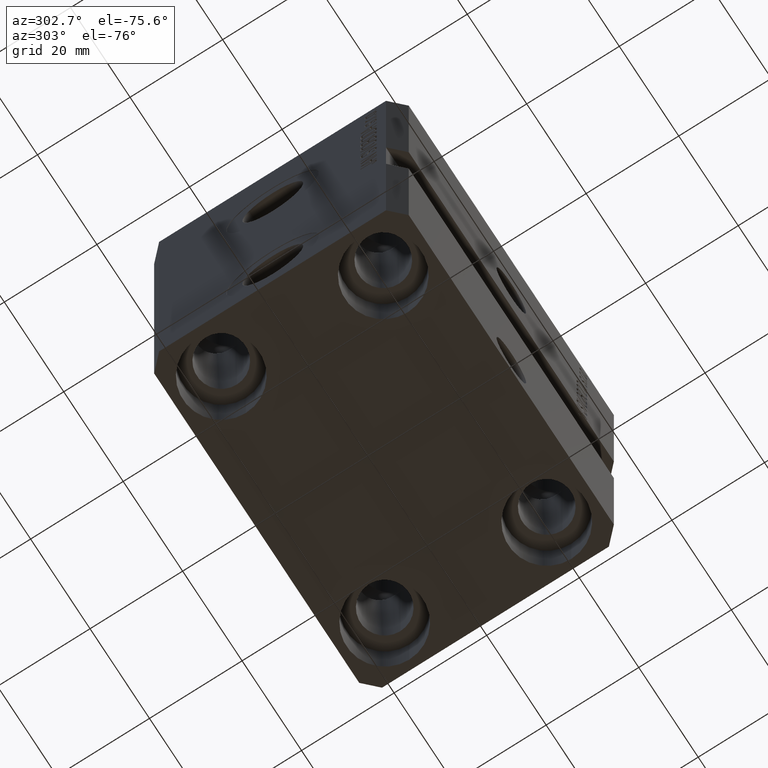
[diagram: clean part render]
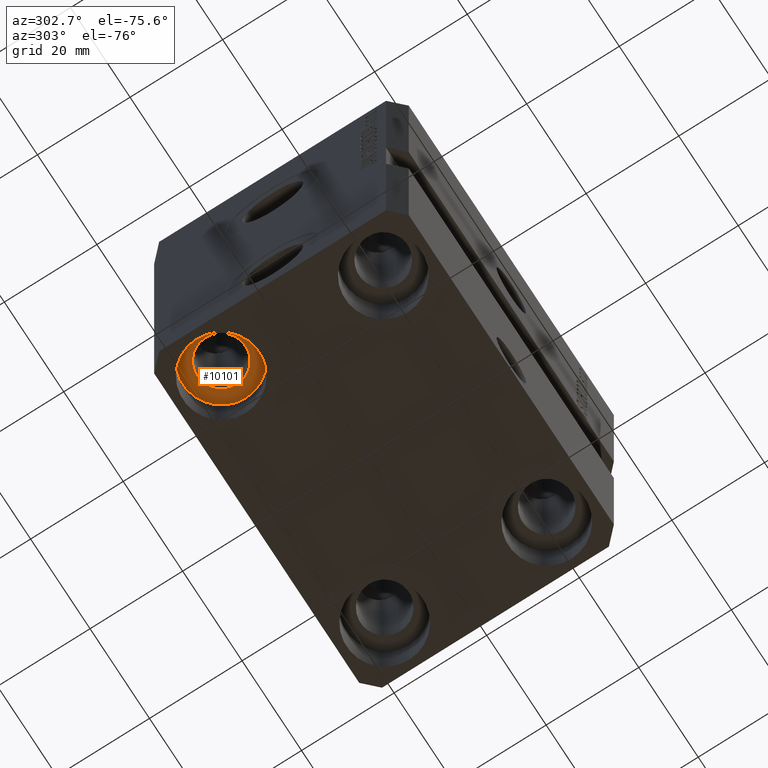
[diagram: same view with one face highlighted and labeled with its STEP entity id]
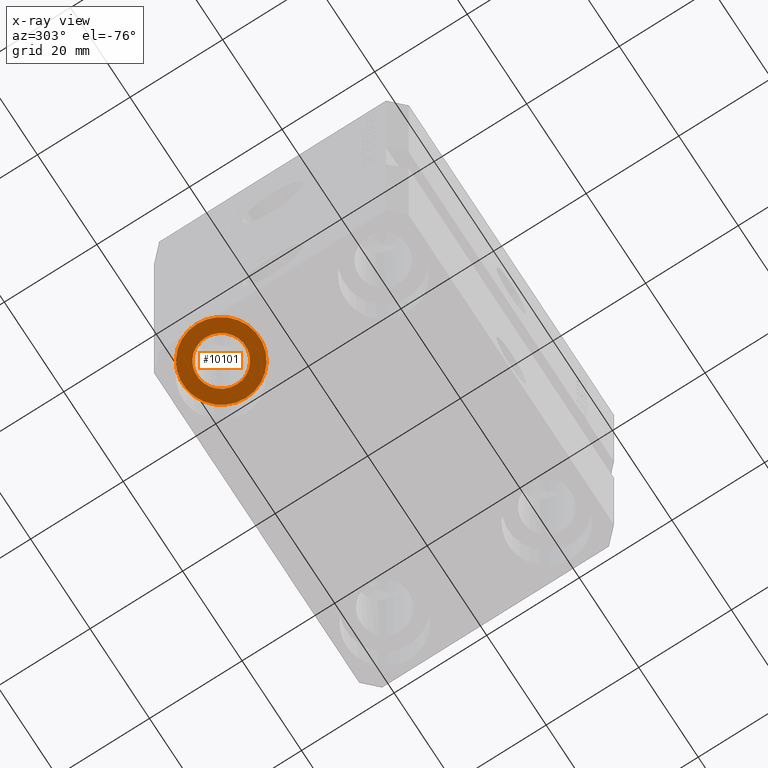
[diagram: x-ray of the same camera — body ghosted, the highlighted face saturated]
A machine part, auxiliary view. The second image highlights one B-rep face of the part: STEP entity #10101.
The next image is the same camera in x-ray: the body ghosted, the highlighted face saturated — about 0% of this face is hidden behind the body in this view.
In plain terms, the highlighted planar face has unit normal (0, 0, -1).
Its self-contained STEP definition (entity closure, byte-faithful):
#149 = DIRECTION ( 'NONE',  ( 1.000000000000000000, 0.000000000000000000, 0.000000000000000000 ) ) ;
#334 = EDGE_CURVE ( 'NONE', #24560, #37947, #20274, .T. ) ;
#2029 = FACE_BOUND ( 'NONE', #32327, .T. ) ;
#4312 = CARTESIAN_POINT ( 'NONE',  ( -19.25000000000000355, 17.50000000000000000, -69.00000000000000000 ) ) ;
#5362 = DIRECTION ( 'NONE',  ( 0.000000000000000000, 0.000000000000000000, -1.000000000000000000 ) ) ;
#6073 = DIRECTION ( 'NONE',  ( 0.000000000000000000, 0.000000000000000000, -1.000000000000000000 ) ) ;
#6429 = CARTESIAN_POINT ( 'NONE',  ( -32.75000000000000000, 17.50000000000000000, -69.00000000000000000 ) ) ;
#8906 = DIRECTION ( 'NONE',  ( 0.000000000000000000, 0.000000000000000000, -1.000000000000000000 ) ) ;
#9075 = CARTESIAN_POINT ( 'NONE',  ( -27.50000000000000355, 17.50000000000000000, -69.00000000000000000 ) ) ;
#9569 = DIRECTION ( 'NONE',  ( -1.000000000000000000, 0.000000000000000000, 0.000000000000000000 ) ) ;
#9730 = CARTESIAN_POINT ( 'NONE',  ( -22.25000000000000355, 17.50000000000000000, -69.00000000000000000 ) ) ;
#10101 = ADVANCED_FACE ( 'NONE', ( #2029, #36550 ), #35886, .T. ) ;
#12743 = CARTESIAN_POINT ( 'NONE',  ( -27.50000000000000355, 17.50000000000000000, -69.00000000000000000 ) ) ;
#13319 = ORIENTED_EDGE ( 'NONE', *, *, #334, .F. ) ;
#13341 = AXIS2_PLACEMENT_3D ( 'NONE', #43022, #5362, #15589 ) ;
#13897 = CARTESIAN_POINT ( 'NONE',  ( -35.75000000000000711, 17.50000000000000000, -69.00000000000000000 ) ) ;
#15589 = DIRECTION ( 'NONE',  ( 1.000000000000000000, 0.000000000000000000, 0.000000000000000000 ) ) ;
#17131 = CIRCLE ( 'NONE', #19958, 8.250000000000000000 ) ;
#18420 = EDGE_CURVE ( 'NONE', #37947, #24560, #17131, .T. ) ;
#18655 = DIRECTION ( 'NONE',  ( 1.000000000000000000, 0.000000000000000000, 0.000000000000000000 ) ) ;
#19958 = AXIS2_PLACEMENT_3D ( 'NONE', #9075, #22664, #18655 ) ;
#20274 = CIRCLE ( 'NONE', #43783, 8.250000000000000000 ) ;
#21581 = EDGE_CURVE ( 'NONE', #24112, #39594, #27153, .T. ) ;
#22173 = AXIS2_PLACEMENT_3D ( 'NONE', #12743, #6073, #26551 ) ;
#22664 = DIRECTION ( 'NONE',  ( -0.000000000000000000, -0.000000000000000000, 1.000000000000000000 ) ) ;
#24112 = VERTEX_POINT ( 'NONE', #9730 ) ;
#24560 = VERTEX_POINT ( 'NONE', #4312 ) ;
#24623 = ORIENTED_EDGE ( 'NONE', *, *, #21581, .F. ) ;
#24977 = EDGE_CURVE ( 'NONE', #39594, #24112, #32854, .T. ) ;
#25847 = CARTESIAN_POINT ( 'NONE',  ( -27.50000000000000355, 17.50000000000000000, -69.00000000000000000 ) ) ;
#26267 = ORIENTED_EDGE ( 'NONE', *, *, #24977, .F. ) ;
#26551 = DIRECTION ( 'NONE',  ( -1.000000000000000000, 0.000000000000000000, 0.000000000000000000 ) ) ;
#27153 = CIRCLE ( 'NONE', #22173, 5.249999999999997335 ) ;
#27516 = CARTESIAN_POINT ( 'NONE',  ( -27.50000000000000355, 17.50000000000000000, -69.00000000000000000 ) ) ;
#30953 = EDGE_LOOP ( 'NONE', ( #41626, #13319 ) ) ;
#31297 = DIRECTION ( 'NONE',  ( -0.000000000000000000, -0.000000000000000000, 1.000000000000000000 ) ) ;
#32327 = EDGE_LOOP ( 'NONE', ( #24623, #26267 ) ) ;
#32854 = CIRCLE ( 'NONE', #38555, 5.249999999999997335 ) ;
#35886 = PLANE ( 'NONE',  #13341 ) ;
#36550 = FACE_OUTER_BOUND ( 'NONE', #30953, .T. ) ;
#37947 = VERTEX_POINT ( 'NONE', #13897 ) ;
#38555 = AXIS2_PLACEMENT_3D ( 'NONE', #25847, #8906, #9569 ) ;
#39594 = VERTEX_POINT ( 'NONE', #6429 ) ;
#41626 = ORIENTED_EDGE ( 'NONE', *, *, #18420, .F. ) ;
#43022 = CARTESIAN_POINT ( 'NONE',  ( -27.50000000000000355, 17.50000000000000000, -69.00000000000000000 ) ) ;
#43783 = AXIS2_PLACEMENT_3D ( 'NONE', #27516, #31297, #149 ) ;